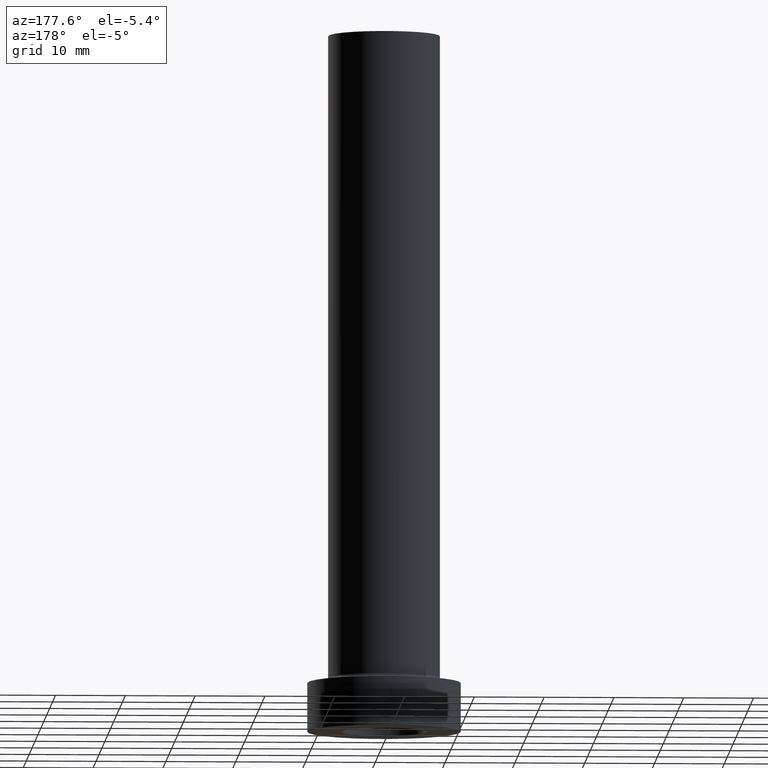
[diagram: clean part render]
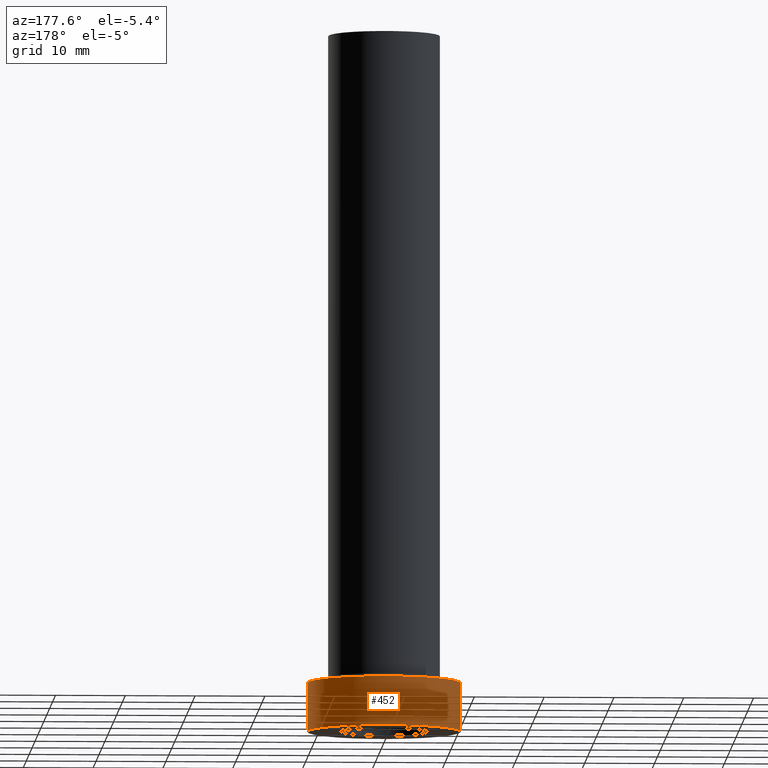
[diagram: same view with one face highlighted and labeled with its STEP entity id]
A machine part, auxiliary view. The second image highlights one B-rep face of the part: STEP entity #452.
In plain terms, the highlighted cylindrical surface (partial cylindrical patch) has radius 11 mm, axis along (-0, -0, -1).
Its self-contained STEP definition (entity closure, byte-faithful):
#6 = CARTESIAN_POINT ( 'NONE',  ( 0.000000000000000000, 0.000000000000000000, 7.000000000000000000 ) ) ;
#11 = EDGE_CURVE ( 'NONE', #124, #224, #206, .T. ) ;
#18 = CARTESIAN_POINT ( 'NONE',  ( -11.00000000000000000, 0.000000000000000000, 7.000000000000000000 ) ) ;
#20 = DIRECTION ( 'NONE',  ( 0.000000000000000000, 0.000000000000000000, 1.000000000000000000 ) ) ;
#54 = CIRCLE ( 'NONE', #292, 11.00000000000000000 ) ;
#79 = ORIENTED_EDGE ( 'NONE', *, *, #417, .T. ) ;
#90 = VECTOR ( 'NONE', #233, 1000.000000000000000 ) ;
#95 = DIRECTION ( 'NONE',  ( 1.000000000000000000, 0.000000000000000000, 0.000000000000000000 ) ) ;
#111 = CARTESIAN_POINT ( 'NONE',  ( -11.00000000000000000, 0.000000000000000000, 7.000000000000000000 ) ) ;
#124 = VERTEX_POINT ( 'NONE', #358 ) ;
#132 = CARTESIAN_POINT ( 'NONE',  ( 11.00000000000000000, 1.347111479062088405E-15, 7.000000000000000000 ) ) ;
#134 = AXIS2_PLACEMENT_3D ( 'NONE', #445, #20, #95 ) ;
#155 = VERTEX_POINT ( 'NONE', #111 ) ;
#161 = CYLINDRICAL_SURFACE ( 'NONE', #434, 11.00000000000000000 ) ;
#165 = FACE_OUTER_BOUND ( 'NONE', #204, .T. ) ;
#168 = CARTESIAN_POINT ( 'NONE',  ( 0.000000000000000000, 0.000000000000000000, 7.000000000000000000 ) ) ;
#185 = CARTESIAN_POINT ( 'NONE',  ( 11.00000000000000000, 1.347111479062088405E-15, 0.000000000000000000 ) ) ;
#186 = ORIENTED_EDGE ( 'NONE', *, *, #435, .F. ) ;
#204 = EDGE_LOOP ( 'NONE', ( #446, #280, #79, #186 ) ) ;
#205 = VECTOR ( 'NONE', #279, 1000.000000000000000 ) ;
#206 = LINE ( 'NONE', #132, #205 ) ;
#224 = VERTEX_POINT ( 'NONE', #185 ) ;
#233 = DIRECTION ( 'NONE',  ( -0.000000000000000000, -0.000000000000000000, -1.000000000000000000 ) ) ;
#259 = EDGE_CURVE ( 'NONE', #124, #155, #54, .T. ) ;
#265 = DIRECTION ( 'NONE',  ( 1.000000000000000000, 0.000000000000000000, 0.000000000000000000 ) ) ;
#266 = CIRCLE ( 'NONE', #134, 11.00000000000000000 ) ;
#279 = DIRECTION ( 'NONE',  ( -0.000000000000000000, -0.000000000000000000, -1.000000000000000000 ) ) ;
#280 = ORIENTED_EDGE ( 'NONE', *, *, #11, .T. ) ;
#292 = AXIS2_PLACEMENT_3D ( 'NONE', #6, #335, #265 ) ;
#296 = CARTESIAN_POINT ( 'NONE',  ( -11.00000000000000000, 0.000000000000000000, 0.000000000000000000 ) ) ;
#312 = DIRECTION ( 'NONE',  ( -1.000000000000000000, 0.000000000000000000, 0.000000000000000000 ) ) ;
#313 = VERTEX_POINT ( 'NONE', #296 ) ;
#335 = DIRECTION ( 'NONE',  ( 0.000000000000000000, 0.000000000000000000, 1.000000000000000000 ) ) ;
#340 = DIRECTION ( 'NONE',  ( -0.000000000000000000, -0.000000000000000000, -1.000000000000000000 ) ) ;
#358 = CARTESIAN_POINT ( 'NONE',  ( 11.00000000000000000, 1.347111479062088405E-15, 7.000000000000000000 ) ) ;
#412 = LINE ( 'NONE', #18, #90 ) ;
#417 = EDGE_CURVE ( 'NONE', #224, #313, #266, .T. ) ;
#434 = AXIS2_PLACEMENT_3D ( 'NONE', #168, #340, #312 ) ;
#435 = EDGE_CURVE ( 'NONE', #155, #313, #412, .T. ) ;
#445 = CARTESIAN_POINT ( 'NONE',  ( 0.000000000000000000, 0.000000000000000000, 0.000000000000000000 ) ) ;
#446 = ORIENTED_EDGE ( 'NONE', *, *, #259, .F. ) ;
#452 = ADVANCED_FACE ( 'NONE', ( #165 ), #161, .T. ) ;